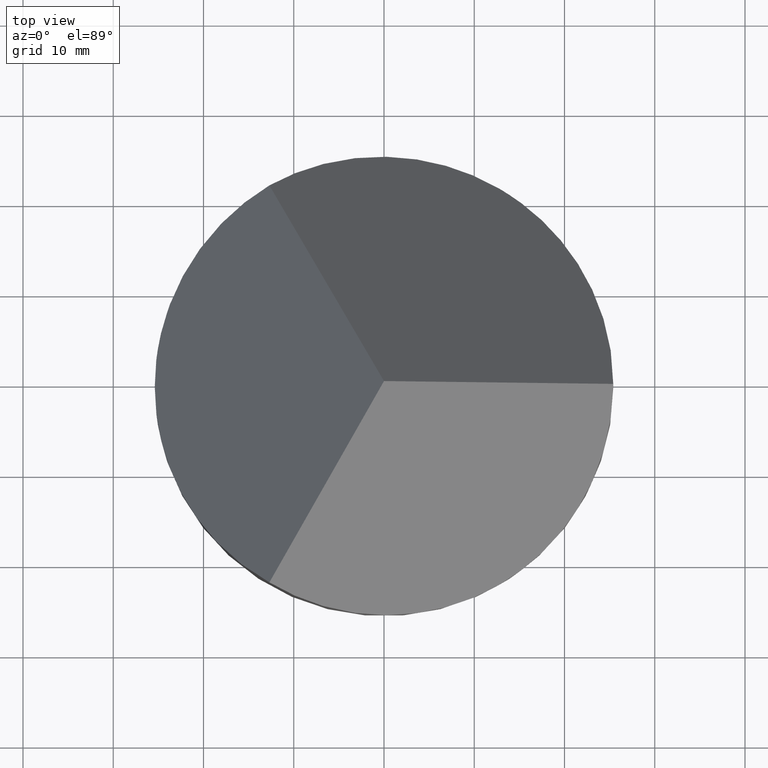
[diagram: clean part render]
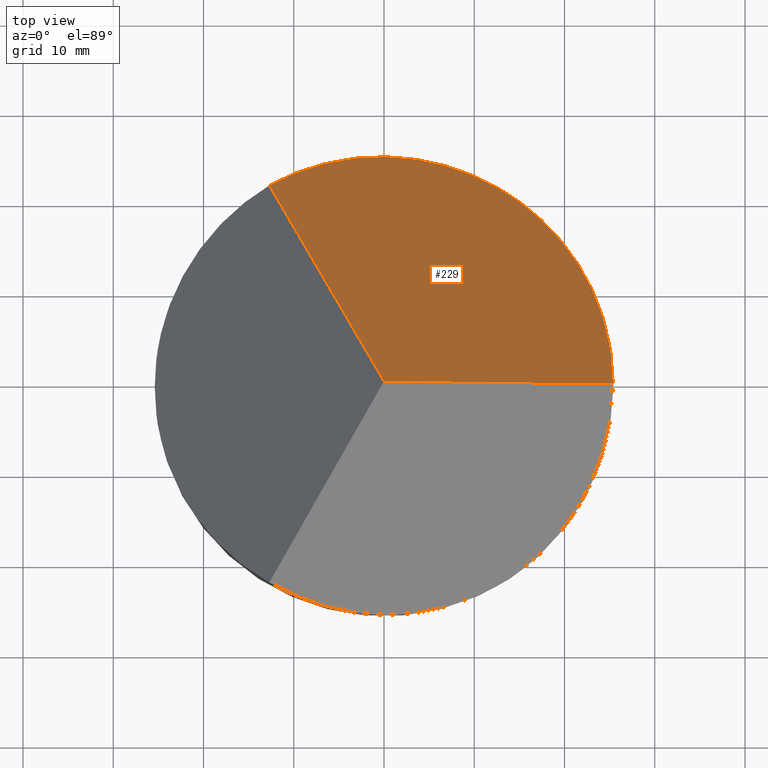
[diagram: same view with one face highlighted and labeled with its STEP entity id]
A machine part, top view. The second image highlights one B-rep face of the part: STEP entity #229.
In plain terms, the highlighted planar face has unit normal (0.4082, 0.7071, 0.5774).
Its self-contained STEP definition (entity closure, byte-faithful):
#20 = LINE ( 'NONE', #181, #183 ) ;
#27 = CARTESIAN_POINT ( 'NONE',  ( 53.69357503463527300, -30.99999999999985400, 37.50000000000000000 ) ) ;
#30 = VERTEX_POINT ( 'NONE', #255 ) ;
#31 = CARTESIAN_POINT ( 'NONE',  ( 25.40000000000000600, 8.287156070320854400E-015, 19.54321793648239600 ) ) ;
#42 = CARTESIAN_POINT ( 'NONE',  ( 6.349999999999965900, 32.99556788418713200, -7.391955158794217200 ) ) ;
#43 = EDGE_CURVE ( 'NONE', #283, #64, #20, .T. ) ;
#44 = CARTESIAN_POINT ( 'NONE',  ( -6.938893903907228400E-015, -3.650717720411316700E-015, 37.49999999999999300 ) ) ;
#48 = CARTESIAN_POINT ( 'NONE',  ( 11.40424666751465700, -19.75273465018338100, 53.62469070922507100 ) ) ;
#64 = VERTEX_POINT ( 'NONE', #44 ) ;
#66 = DIRECTION ( 'NONE',  ( -0.8165531063768113300, -1.665334552906125000E-016, 0.5772703218305786900 ) ) ;
#72 = DIRECTION ( 'NONE',  ( 0.4082200218682778300, 0.7070578185427395200, 0.5774302165486712200 ) ) ;
#97 = DIRECTION ( 'NONE',  ( 0.0000000000000000000, -0.6325343505460012700, 0.7745323075116674600 ) ) ;
#112 = EDGE_CURVE ( 'NONE', #283, #30, #257, .T. ) ;
#131 = CARTESIAN_POINT ( 'NONE',  ( 25.40000000000000200, 21.99704525612476000, -7.391955158794154100 ) ) ;
#138 = DIRECTION ( 'NONE',  ( 0.4082765531884056700, -0.7071557336614137100, 0.5772703218305811300 ) ) ;
#159 = ORIENTED_EDGE ( 'NONE', *, *, #189, .T. ) ;
#164 = AXIS2_PLACEMENT_3D ( 'NONE', #27, #72, #97 ) ;
#181 = CARTESIAN_POINT ( 'NONE',  ( 35.80067308283096800, 1.040834085586084300E-014, 12.19035888678596900 ) ) ;
#183 = VECTOR ( 'NONE', #66, 1000.000000000000100 ) ;
#189 = EDGE_CURVE ( 'NONE', #30, #64, #309, .T. ) ;
#200 = FACE_OUTER_BOUND ( 'NONE', #201, .T. ) ;
#201 = EDGE_LOOP ( 'NONE', ( #245, #298, #159 ) ) ;
#224 = VECTOR ( 'NONE', #138, 1000.000000000000000 ) ;
#229 = ADVANCED_FACE ( 'NONE', ( #200 ), #265, .T. ) ;
#245 = ORIENTED_EDGE ( 'NONE', *, *, #43, .F. ) ;
#255 = CARTESIAN_POINT ( 'NONE',  ( -12.70000000000002400, 21.99704525612472500, 19.54321793648229600 ) ) ;
#257 =( BOUNDED_CURVE ( )  B_SPLINE_CURVE ( 3, ( #281, #131, #42, #284 ),
 .UNSPECIFIED., .F., .T. ) 
 B_SPLINE_CURVE_WITH_KNOTS ( ( 4, 4 ),
 ( 5.235987755982986200, 7.330382858376182800 ),
 .UNSPECIFIED. ) 
 CURVE ( )  GEOMETRIC_REPRESENTATION_ITEM ( )  RATIONAL_B_SPLINE_CURVE ( ( 1.000000000000000000, 0.6666666666666663000, 0.6666666666666663000, 1.000000000000000000 ) ) 
 REPRESENTATION_ITEM ( '' )  );
#265 = PLANE ( 'NONE',  #164 ) ;
#281 = CARTESIAN_POINT ( 'NONE',  ( 25.40000000000000600, 8.287156070320854400E-015, 19.54321793648239600 ) ) ;
#283 = VERTEX_POINT ( 'NONE', #31 ) ;
#284 = CARTESIAN_POINT ( 'NONE',  ( -12.70000000000002400, 21.99704525612472500, 19.54321793648229600 ) ) ;
#298 = ORIENTED_EDGE ( 'NONE', *, *, #112, .T. ) ;
#309 = LINE ( 'NONE', #48, #224 ) ;